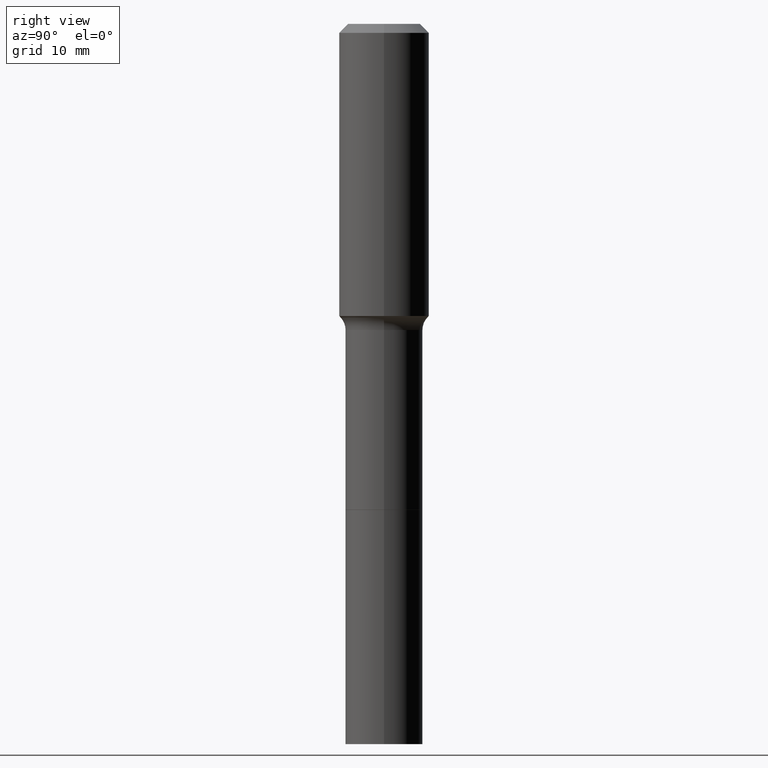
[diagram: clean part render]
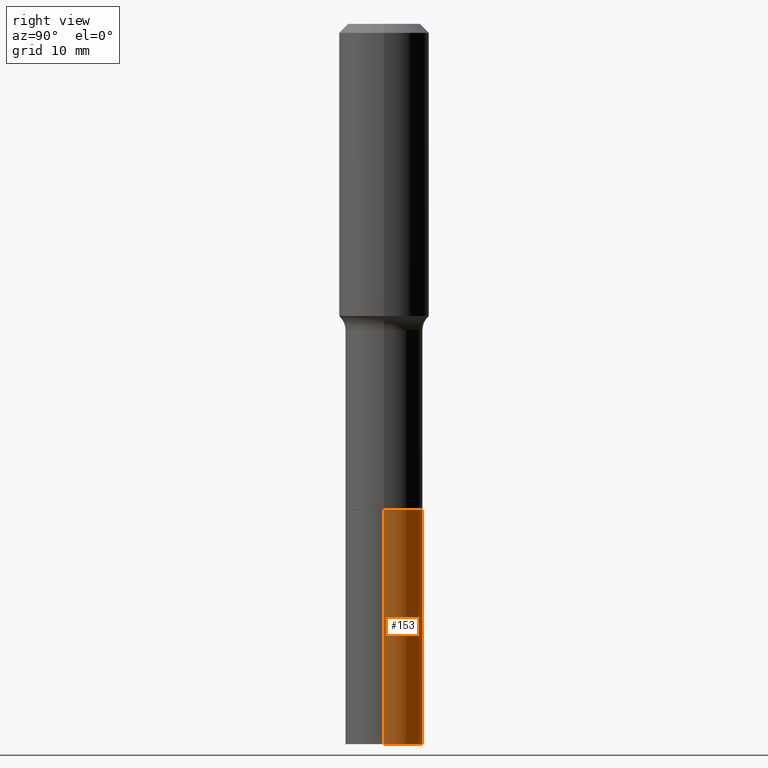
[diagram: same view with one face highlighted and labeled with its STEP entity id]
A machine part, right view. The second image highlights one B-rep face of the part: STEP entity #153.
In plain terms, the highlighted cylindrical surface (partial cylindrical patch) has radius 4.3002 mm, axis along (-0, 0, 1).
Its self-contained STEP definition (entity closure, byte-faithful):
#7 = ORIENTED_EDGE ( 'NONE', *, *, #441, .T. ) ;
#12 = CARTESIAN_POINT ( 'NONE',  ( 0.1693000000000000338, -8.603708315177275821E-15, -2.125599999999999934 ) ) ;
#32 = VERTEX_POINT ( 'NONE', #356 ) ;
#52 = DIRECTION ( 'NONE',  ( -2.445468806185136877E-29, 3.491481338843145188E-15, 1.000000000000000000 ) ) ;
#53 = DIRECTION ( 'NONE',  ( -2.445468806185136597E-29, 3.491481338843145583E-15, 1.000000000000000000 ) ) ;
#68 = ORIENTED_EDGE ( 'NONE', *, *, #95, .F. ) ;
#95 = EDGE_CURVE ( 'NONE', #155, #252, #128, .T. ) ;
#103 = AXIS2_PLACEMENT_3D ( 'NONE', #365, #156, #431 ) ;
#128 = CIRCLE ( 'NONE', #492, 0.1693000000000000338 ) ;
#153 = ADVANCED_FACE ( 'NONE', ( #485 ), #405, .T. ) ;
#155 = VERTEX_POINT ( 'NONE', #12 ) ;
#156 = DIRECTION ( 'NONE',  ( -2.445468806185136597E-29, 3.491481338843145583E-15, 1.000000000000000000 ) ) ;
#158 = LINE ( 'NONE', #317, #408 ) ;
#194 = CARTESIAN_POINT ( 'NONE',  ( -0.1693000000000001171, -6.218543882203139770E-15, -2.125599999999999934 ) ) ;
#252 = VERTEX_POINT ( 'NONE', #379 ) ;
#257 = VECTOR ( 'NONE', #52, 39.37007874015748143 ) ;
#281 = DIRECTION ( 'NONE',  ( 1.000000000000000000, -6.982962677686263555E-15, 0.000000000000000000 ) ) ;
#290 = DIRECTION ( 'NONE',  ( 1.000000000000000000, -6.982962677686265922E-15, 0.000000000000000000 ) ) ;
#317 = CARTESIAN_POINT ( 'NONE',  ( 0.1693000000000001171, -8.603708315177275821E-15, -2.125599999999999934 ) ) ;
#322 = LINE ( 'NONE', #194, #257 ) ;
#340 = CIRCLE ( 'NONE', #103, 0.1693000000000002281 ) ;
#342 = DIRECTION ( 'NONE',  ( -2.445468806185136597E-29, 3.491481338843145583E-15, 1.000000000000000000 ) ) ;
#345 = ORIENTED_EDGE ( 'NONE', *, *, #484, .F. ) ;
#354 = EDGE_LOOP ( 'NONE', ( #7, #399, #68, #345 ) ) ;
#356 = CARTESIAN_POINT ( 'NONE',  ( 0.1693000000000002281, -1.217898520615265870E-14, -3.149600000000000399 ) ) ;
#364 = CARTESIAN_POINT ( 'NONE',  ( 5.198088494427126854E-29, -7.421492733844991006E-15, -2.125599999999999934 ) ) ;
#365 = CARTESIAN_POINT ( 'NONE',  ( 7.702248551960706711E-29, -1.099676962482037231E-14, -3.149600000000000399 ) ) ;
#379 = CARTESIAN_POINT ( 'NONE',  ( -0.1693000000000000338, -8.006182327690830422E-15, -2.125599999999999934 ) ) ;
#380 = AXIS2_PLACEMENT_3D ( 'NONE', #364, #53, #290 ) ;
#393 = VERTEX_POINT ( 'NONE', #436 ) ;
#399 = ORIENTED_EDGE ( 'NONE', *, *, #422, .T. ) ;
#405 = CYLINDRICAL_SURFACE ( 'NONE', #380, 0.1693000000000001171 ) ;
#408 = VECTOR ( 'NONE', #476, 39.37007874015748143 ) ;
#422 = EDGE_CURVE ( 'NONE', #393, #252, #322, .T. ) ;
#431 = DIRECTION ( 'NONE',  ( 1.000000000000000000, -6.982962677686261189E-15, 0.000000000000000000 ) ) ;
#436 = CARTESIAN_POINT ( 'NONE',  ( -0.1693000000000002281, -8.006182327690828844E-15, -3.149600000000000399 ) ) ;
#441 = EDGE_CURVE ( 'NONE', #32, #393, #340, .T. ) ;
#476 = DIRECTION ( 'NONE',  ( -2.445468806185136877E-29, 3.491481338843145188E-15, 1.000000000000000000 ) ) ;
#484 = EDGE_CURVE ( 'NONE', #32, #155, #158, .T. ) ;
#485 = FACE_OUTER_BOUND ( 'NONE', #354, .T. ) ;
#492 = AXIS2_PLACEMENT_3D ( 'NONE', #494, #342, #281 ) ;
#494 = CARTESIAN_POINT ( 'NONE',  ( 5.198088494427126854E-29, -7.421492733844991006E-15, -2.125599999999999934 ) ) ;